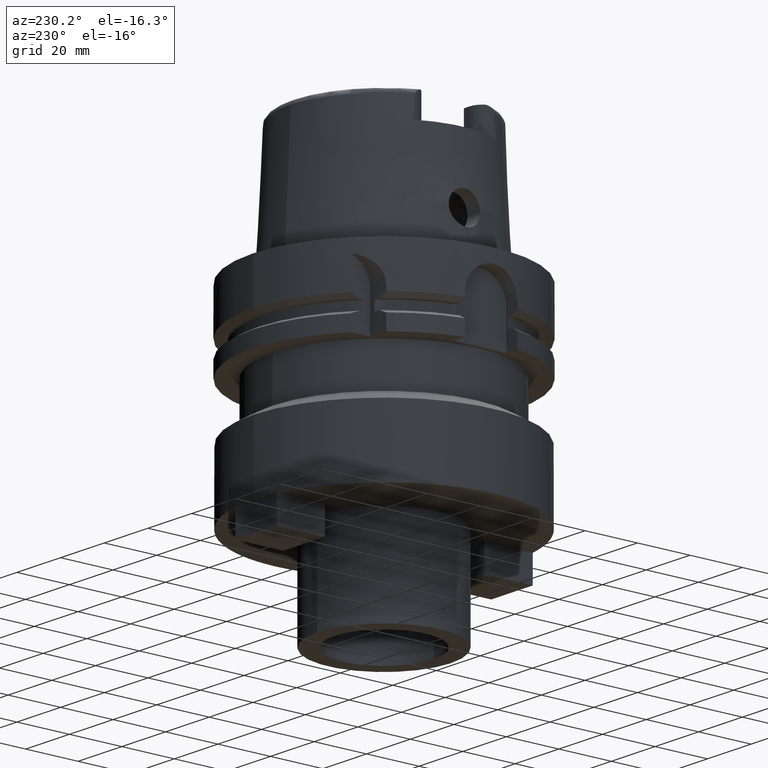
[diagram: clean part render]
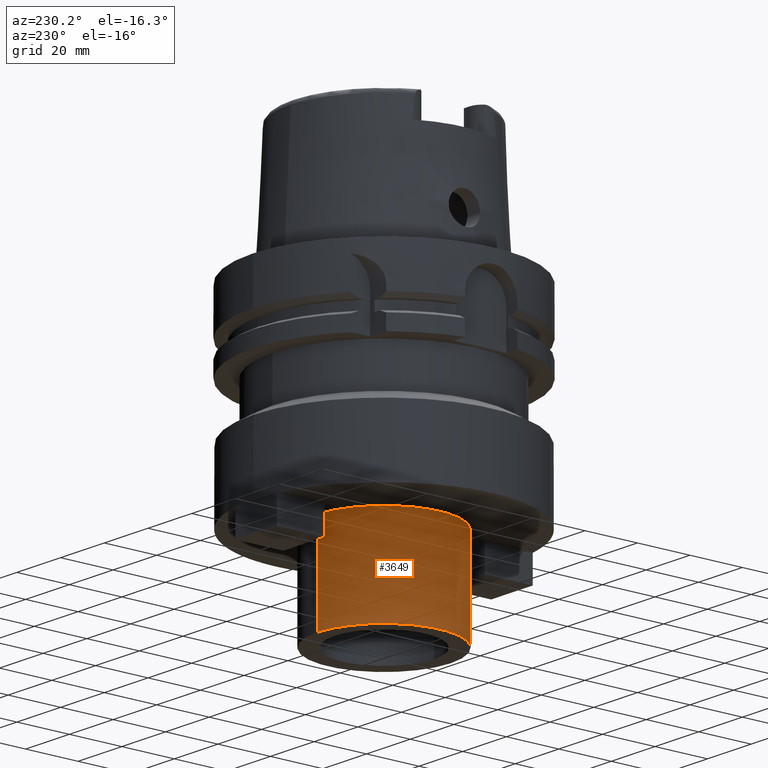
[diagram: same view with one face highlighted and labeled with its STEP entity id]
A machine part, auxiliary view. The second image highlights one B-rep face of the part: STEP entity #3649.
In plain terms, the highlighted cylindrical surface (partial cylindrical patch) has radius 25.4 mm, axis along (0, 0, -1).
Its self-contained STEP definition (entity closure, byte-faithful):
#1097=CARTESIAN_POINT('',(0.E0,1.935554266052E-14,-1.11E2));
#1098=DIRECTION('',(0.E0,0.E0,1.E0));
#1099=DIRECTION('',(0.E0,1.E0,0.E0));
#1100=AXIS2_PLACEMENT_3D('',#1097,#1098,#1099);
#1121=DIRECTION('',(0.E0,0.E0,-1.E0));
#1122=VECTOR('',#1121,3.6E1);
#1123=CARTESIAN_POINT('',(0.E0,2.54E1,-7.5E1));
#1124=LINE('',#1123,#1122);
#1128=DIRECTION('',(0.E0,0.E0,-1.E0));
#1129=VECTOR('',#1128,3.6E1);
#1130=CARTESIAN_POINT('',(0.E0,-2.54E1,-7.5E1));
#1131=LINE('',#1130,#1129);
#1151=CARTESIAN_POINT('',(0.E0,1.935554266052E-14,-7.5E1));
#1152=DIRECTION('',(0.E0,0.E0,-1.E0));
#1153=DIRECTION('',(0.E0,-1.E0,0.E0));
#1154=AXIS2_PLACEMENT_3D('',#1151,#1152,#1153);
#2618=CARTESIAN_POINT('',(0.E0,-2.54E1,-1.11E2));
#2619=CARTESIAN_POINT('',(0.E0,2.54E1,-1.11E2));
#2620=VERTEX_POINT('',#2618);
#2621=VERTEX_POINT('',#2619);
#2622=CARTESIAN_POINT('',(0.E0,2.54E1,-7.5E1));
#2623=VERTEX_POINT('',#2622);
#2624=CARTESIAN_POINT('',(0.E0,-2.54E1,-7.5E1));
#2625=VERTEX_POINT('',#2624);
#3637=CARTESIAN_POINT('',(0.E0,1.935554266052E-14,5.805E1));
#3638=DIRECTION('',(0.E0,0.E0,-1.E0));
#3639=DIRECTION('',(0.E0,-1.E0,0.E0));
#3640=AXIS2_PLACEMENT_3D('',#3637,#3638,#3639);
#3641=CYLINDRICAL_SURFACE('',#3640,2.54E1);
#3642=ORIENTED_EDGE('',*,*,#3627,.F.);
#3644=ORIENTED_EDGE('',*,*,#3643,.F.);
#3645=ORIENTED_EDGE('',*,*,#3630,.T.);
#3646=ORIENTED_EDGE('',*,*,#3613,.F.);
#3647=EDGE_LOOP('',(#3642,#3644,#3645,#3646));
#3648=FACE_OUTER_BOUND('',#3647,.F.);
#1101=CIRCLE('',#1100,2.54E1);
#1155=CIRCLE('',#1154,2.54E1);
#3613=EDGE_CURVE('',#2621,#2620,#1101,.T.);
#3627=EDGE_CURVE('',#2623,#2621,#1124,.T.);
#3630=EDGE_CURVE('',#2625,#2620,#1131,.T.);
#3643=EDGE_CURVE('',#2625,#2623,#1155,.T.);
#3649=ADVANCED_FACE('',(#3648),#3641,.T.);